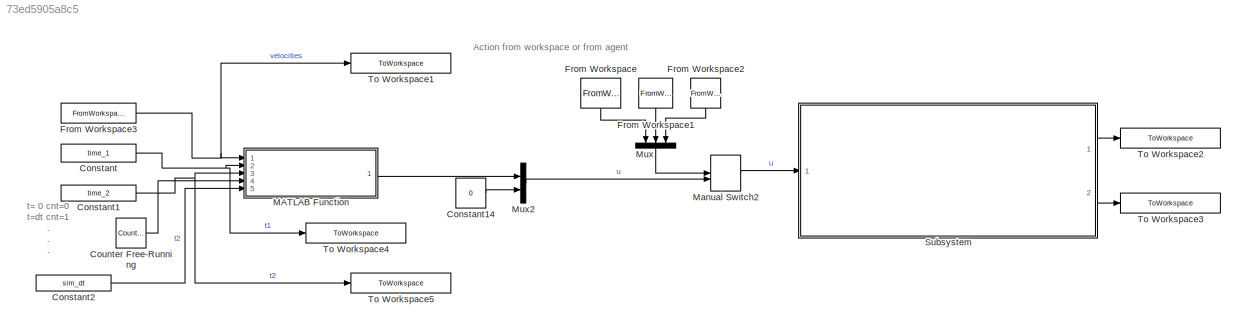
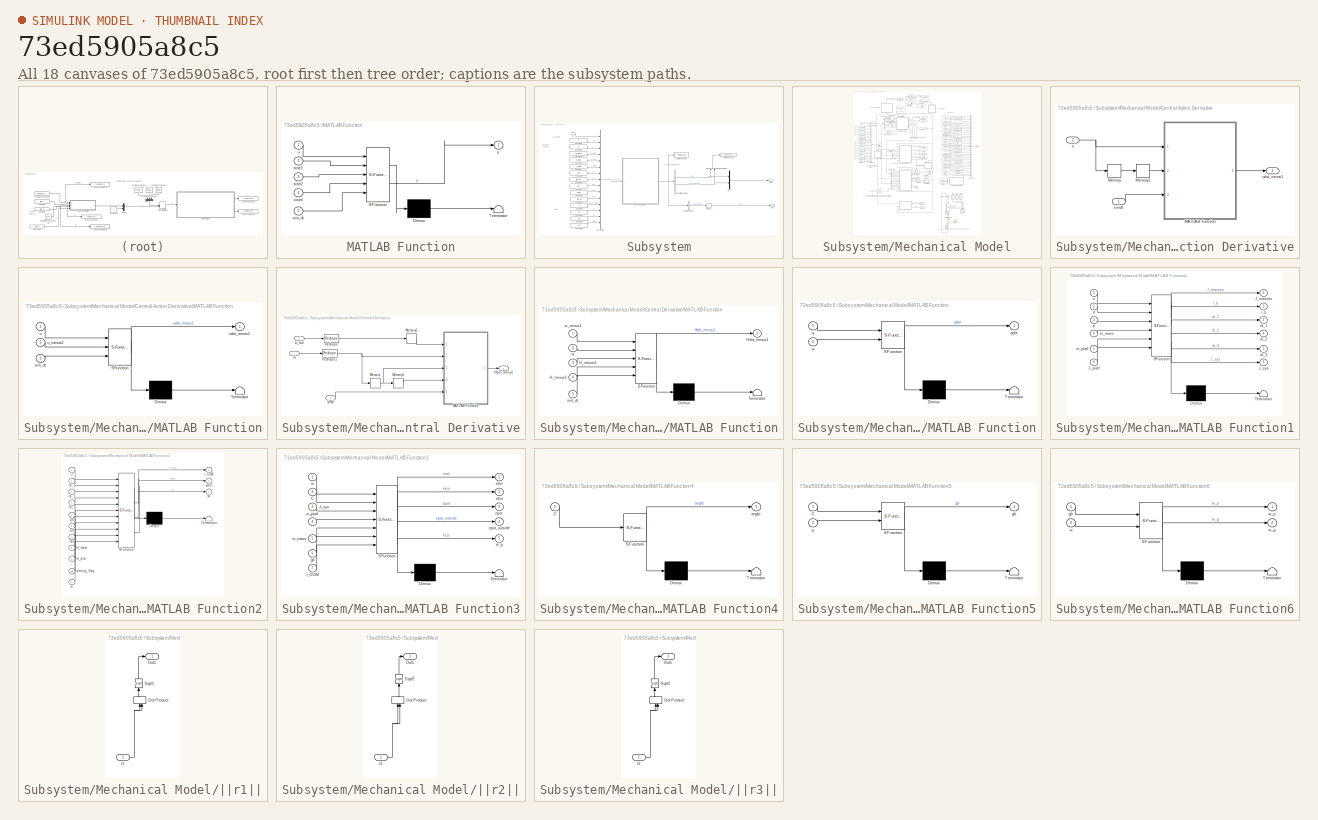
[diagram: thumbnail index - all 18 canvases of the model, root first then tree order]
MODEL slx_73ed5905a8c5
KIND model
CONFIG AbsTol = auto
CONFIG EnableMultiTasking = off
CONFIG FixedStep = 0.001
CONFIG MaxStep = auto
CONFIG MinStep = auto
CONFIG RelTol = 1e-3
CONFIG SampleTimeConstraint = Unconstrained
CONFIG SolverName = FixedStepAuto
CONFIG StartTime = 0.0
CONFIG StopTime = simTime
BLOCK [Constant] Constant
  Value = time_1
BLOCK [Constant] Constant1
  Value = time_2
BLOCK [Constant] Constant14
  Value = 0
BLOCK [Constant] Constant2
  Value = sim_dt
BLOCK [Reference] Counter Free-Running  REF=simulink/Sources/Counter
Free-Running
  Ports = [0, 1]
  SourceBlock = simulink/Sources/Counter\nFree-Running
  SourceProductBaseCode = SL
  SourceType = Counter Free-Running
BLOCK [FromWorkspace] From Workspace
  NameLocation = left
  VariableName = u1
BLOCK [FromWorkspace] From Workspace1
  NameLocation = left
  VariableName = u2
BLOCK [FromWorkspace] From Workspace2
  NameLocation = left
  VariableName = u3
BLOCK [FromWorkspace] From Workspace3
  OutDataTypeStr = double
  VariableName = actions
BLOCK [SubSystem] MATLAB Function
  ErrorFcn = Stateflow.Translate.translate
  PermitHierarchicalResolution = ExplicitOnly
  Ports = [5, 1]
  RequestExecContextInheritance = off
  SFBlockType = MATLAB Function
  TreatAsAtomicUnit = on
BLOCK [Demux] MATLAB Function/ Demux 
  Outputs = 1
  Ports = [1, 1]
BLOCK [S-Function] MATLAB Function/ SFunction 
  EnableBusSupport = on
  FunctionName = sf_sfun
  PortCounts = [5 2]
  Ports = [5, 2]
  SFcnIsStateOwnerBlock = off
  SFunctionDeploymentMode = off
  Tag = Stateflow S-Function 9
BLOCK [Terminator] MATLAB Function/ Terminator 
BLOCK [Inport] MATLAB Function/count
  Port = 4
BLOCK [Inport] MATLAB Function/sim_dt
  Port = 5
BLOCK [Inport] MATLAB Function/time1
  Port = 2
BLOCK [Inport] MATLAB Function/time2
  Port = 3
BLOCK [Inport] MATLAB Function/u
BLOCK [Outport] MATLAB Function/y
BLOCK [ManualSwitch] Manual Switch2
  CurrentSetting = 0
BLOCK [Mux] Mux
  DisplayOption = bar
  Inputs = 3
  NameLocation = left
  Ports = [3, 1]
BLOCK [Mux] Mux2
  DisplayOption = bar
  Inputs = 2
  Ports = [2, 1]
BLOCK [SubSystem] Subsystem
  Ports = [1, 2]
  RequestExecContextInheritance = off
BLOCK [BusCreator] Subsystem/Bus Creator
  DisplayOption = bar
  InheritFromInputs = on
  Inputs = 15
  Ports = [15, 1]
BLOCK [BusCreator] Subsystem/Bus Creator1
  DisplayOption = bar
  InheritFromInputs = on
  Inputs = 2
  NameLocation = right
  Ports = [2, 1]
BLOCK [Constant] Subsystem/Constant
  Value = J_platf
BLOCK [Constant] Subsystem/Constant1
  Value = m_platf
BLOCK [Constant] Subsystem/Constant10
  Value = q0
BLOCK [Constant] Subsystem/Constant11
  Value = umax
BLOCK [Constant] Subsystem/Constant12
  Value = sim_dt
BLOCK [Constant] Subsystem/Constant13
  Value = u0
BLOCK [Constant] Subsystem/Constant2
  Value = m_mass
BLOCK [Constant] Subsystem/Constant3
  Value = tau
BLOCK [Constant] Subsystem/Constant4
  Value = [0; 0; -g]
BLOCK [Constant] Subsystem/Constant5
  Value = 0
BLOCK [Constant] Subsystem/Constant6
  Value = roff
BLOCK [Constant] Subsystem/Constant7
  Value = p
BLOCK [Constant] Subsystem/Constant8
  Value = d
BLOCK [Constant] Subsystem/Constant9
  Value = w0
BLOCK [Inport] Subsystem/In1
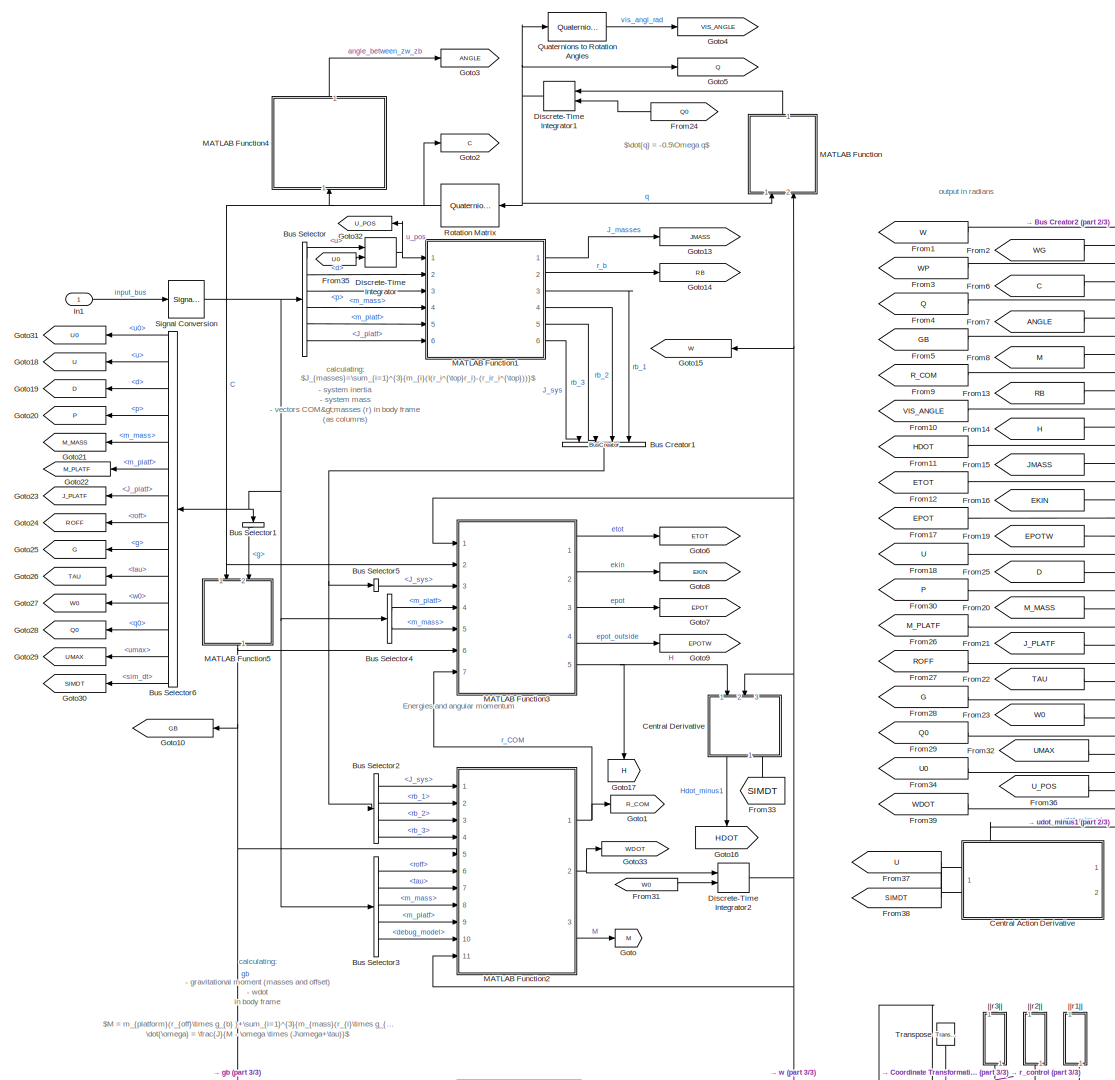
[diagram: Subsystem/Mechanical Model - part 1/3, most of the canvas]
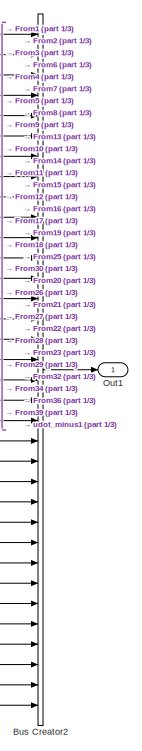
[diagram: Subsystem/Mechanical Model - part 2/3, middle right region]
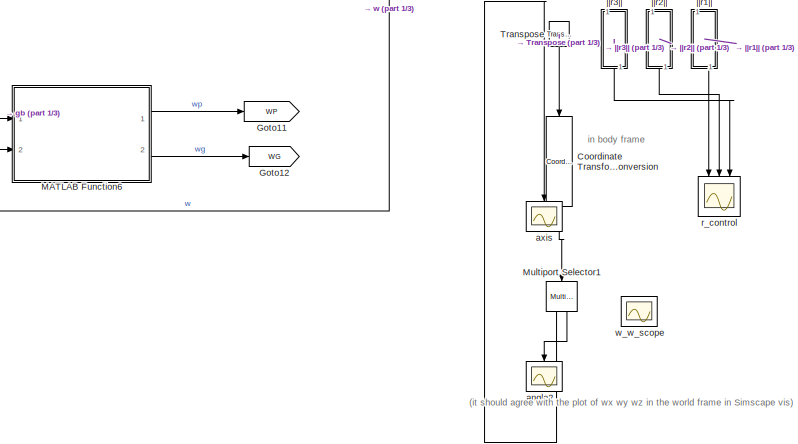
[diagram: Subsystem/Mechanical Model - part 3/3, bottom center region]
BLOCK [SubSystem] Subsystem/Mechanical Model
  NameLocation = top
  Ports = [1, 1]
  RequestExecContextInheritance = off
BLOCK [BusCreator] Subsystem/Mechanical Model/Bus Creator1
  DisplayOption = bar
  InheritFromInputs = on
  Inputs = 4
  NameLocation = left
  Ports = [4, 1]
BLOCK [BusCreator] Subsystem/Mechanical Model/Bus Creator2
  DisplayOption = bar
  InheritFromInputs = on
  Inputs = 34
  Ports = [34, 1]
BLOCK [BusSelector] Subsystem/Mechanical Model/Bus Selector
  OutputSignals = u,d,p,m_mass,m_platf,J_platf
  Ports = [1, 6]
BLOCK [BusSelector] Subsystem/Mechanical Model/Bus Selector1
  NameLocation = left
  OutputSignals = g
  Ports = [1, 1]
BLOCK [BusSelector] Subsystem/Mechanical Model/Bus Selector2
  OutputSignals = J_sys,rb_1,rb_2,rb_3
  Ports = [1, 4]
BLOCK [BusSelector] Subsystem/Mechanical Model/Bus Selector3
  OutputSignals = roff,tau,m_mass,m_platf,debug_model
  Ports = [1, 5]
BLOCK [BusSelector] Subsystem/Mechanical Model/Bus Selector4
  OutputSignals = m_platf,m_mass
  Ports = [1, 2]
BLOCK [BusSelector] Subsystem/Mechanical Model/Bus Selector5
  OutputSignals = J_sys
  Ports = [1, 1]
BLOCK [BusSelector] Subsystem/Mechanical Model/Bus Selector6
  NameLocation = top
  OutputSignals = u0,u,d,p,m_mass,m_platf,J_platf,roff,g,tau,w0,q0,umax,sim_dt
  Ports = [1, 14]
BLOCK [SubSystem] Subsystem/Mechanical Model/Central Action Derivative
  Ports = [2, 1]
  RequestExecContextInheritance = off
BLOCK [SubSystem] Subsystem/Mechanical Model/Central Action Derivative/MATLAB Function
  ErrorFcn = Stateflow.Translate.translate
  PermitHierarchicalResolution = ExplicitOnly
  Ports = [3, 1]
  RequestExecContextInheritance = off
  SFBlockType = MATLAB Function
  TreatAsAtomicUnit = on
BLOCK [Demux] Subsystem/Mechanical Model/Central Action Derivative/MATLAB Function/ Demux 
  Outputs = 1
  Ports = [1, 1]
BLOCK [S-Function] Subsystem/Mechanical Model/Central Action Derivative/MATLAB Function/ SFunction 
  EnableBusSupport = on
  FunctionName = sf_sfun
  PortCounts = [3 2]
  Ports = [3, 2]
  SFcnIsStateOwnerBlock = off
  SFunctionDeploymentMode = off
  Tag = Stateflow S-Function 8
BLOCK [Terminator] Subsystem/Mechanical Model/Central Action Derivative/MATLAB Function/ Terminator 
BLOCK [Inport] Subsystem/Mechanical Model/Central Action Derivative/MATLAB Function/sim_dt
  Port = 3
BLOCK [Inport] Subsystem/Mechanical Model/Central Action Derivative/MATLAB Function/u
BLOCK [Inport] Subsystem/Mechanical Model/Central Action Derivative/MATLAB Function/u_minus2
  Port = 2
BLOCK [Outport] Subsystem/Mechanical Model/Central Action Derivative/MATLAB Function/udot_minus1
BLOCK [Memory] Subsystem/Mechanical Model/Central Action Derivative/Memory
BLOCK [Memory] Subsystem/Mechanical Model/Central Action Derivative/Memory1
BLOCK [Inport] Subsystem/Mechanical Model/Central Action Derivative/simdt
BLOCK [Inport] Subsystem/Mechanical Model/Central Action Derivative/u
  Port = 2
BLOCK [Outport] Subsystem/Mechanical Model/Central Action Derivative/udot_minus1
BLOCK [SubSystem] Subsystem/Mechanical Model/Central Derivative
  NameLocation = left
  PortSchema = {"entries":[{"content":{"sides":[{"content":{"connectorIds":["In1","In2"]},"type":"ConnectorPlacement.EquallySpacedRectSide","uuid":"1383cf58-ed2e-4d76-b2bd-bc812874c5c5"},{"content":{"connectorIds":["Out1","In3"],"side":"RIGHT"},"type":"ConnectorPlacement.EquallySpacedRectSide","uuid":"b1333be6-c310-4c35-a541-4e98fbac6c75"},{"content":{"connectorIds":[],"side":"TOP"},"type":"ConnectorPlacement.Eq...<+252ch>
  Ports = [3, 1]
  RequestExecContextInheritance = off
BLOCK [Inport] Subsystem/Mechanical Model/Central Derivative/H
BLOCK [Outport] Subsystem/Mechanical Model/Central Derivative/Hdot_minus1
BLOCK [SubSystem] Subsystem/Mechanical Model/Central Derivative/MATLAB Function
  ErrorFcn = Stateflow.Translate.translate
  PermitHierarchicalResolution = ExplicitOnly
  Ports = [5, 1]
  RequestExecContextInheritance = off
  SFBlockType = MATLAB Function
  TreatAsAtomicUnit = on
BLOCK [Demux] Subsystem/Mechanical Model/Central Derivative/MATLAB Function/ Demux 
  Outputs = 1
  Ports = [1, 1]
BLOCK [S-Function] Subsystem/Mechanical Model/Central Derivative/MATLAB Function/ SFunction 
  EnableBusSupport = on
  FunctionName = sf_sfun
  PortCounts = [5 2]
  Ports = [5, 2]
  SFcnIsStateOwnerBlock = off
  SFunctionDeploymentMode = off
  Tag = Stateflow S-Function 7
BLOCK [Terminator] Subsystem/Mechanical Model/Central Derivative/MATLAB Function/ Terminator 
BLOCK [Inport] Subsystem/Mechanical Model/Central Derivative/MATLAB Function/H
  Port = 2
BLOCK [Inport] Subsystem/Mechanical Model/Central Derivative/MATLAB Function/H_minus1
  Port = 3
BLOCK [Inport] Subsystem/Mechanical Model/Central Derivative/MATLAB Function/H_minus2
  Port = 4
BLOCK [Outport] Subsystem/Mechanical Model/Central Derivative/MATLAB Function/Hdot_minus1
BLOCK [Inport] Subsystem/Mechanical Model/Central Derivative/MATLAB Function/sim_dt
  Port = 5
BLOCK [Inport] Subsystem/Mechanical Model/Central Derivative/MATLAB Function/w_minus1
BLOCK [Memory] Subsystem/Mechanical Model/Central Derivative/Memory
  InitialCondition = Hb_minus1_mem
BLOCK [Memory] Subsystem/Mechanical Model/Central Derivative/Memory1
  InitialCondition = Hb_minus2_mem
BLOCK [Memory] Subsystem/Mechanical Model/Central Derivative/Memory2
  InitialCondition = w_minus1_mem
BLOCK [Reshape] Subsystem/Mechanical Model/Central Derivative/Reshape
  Ports = [1, 1]
BLOCK [Reshape] Subsystem/Mechanical Model/Central Derivative/Reshape1
  Ports = [1, 1]
BLOCK [Inport] Subsystem/Mechanical Model/Central Derivative/simdt
  Port = 3
BLOCK [Inport] Subsystem/Mechanical Model/Central Derivative/w_rad
  Port = 2
BLOCK [Reference] Subsystem/Mechanical Model/Coordinate Transformation Conversion  REF=robotcorelib/Coordinate Transformation Conversion
  Commented = on
  NameLocation = left
  Ports = [1, 1]
  SourceBlock = robotcorelib/Coordinate Transformation Conversion
  SourceProductBaseCode = NV,RO,RR,UV
  SourceType = robotics.slcore.internal.block.CoordinateTransformationConversion
BLOCK [DiscreteIntegrator] Subsystem/Mechanical Model/Discrete-Time Integrator
  ICPrevOutput = DiscIntNeverNeededParam
  ICPrevScaledInput = DiscIntNeverNeededParam
  InitialConditionSetting = Auto
  InitialConditionSource = external
  Ports = [2, 1]
  SampleTime = -1
BLOCK [DiscreteIntegrator] Subsystem/Mechanical Model/Discrete-Time Integrator1
  ICPrevOutput = DiscIntNeverNeededParam
  ICPrevScaledInput = DiscIntNeverNeededParam
  InitialConditionSetting = Auto
  InitialConditionSource = external
  NameLocation = top
  Ports = [2, 1]
  SampleTime = -1
BLOCK [DiscreteIntegrator] Subsystem/Mechanical Model/Discrete-Time Integrator2
  ICPrevOutput = DiscIntNeverNeededParam
  ICPrevScaledInput = DiscIntNeverNeededParam
  InitialConditionSetting = Auto
  InitialConditionSource = external
  Ports = [2, 1]
  SampleTime = -1
BLOCK [From] Subsystem/Mechanical Model/From1
  GotoTag = W
BLOCK [From] Subsystem/Mechanical Model/From10
  GotoTag = VIS_ANGLE
BLOCK [From] Subsystem/Mechanical Model/From11
  GotoTag = HDOT
BLOCK [From] Subsystem/Mechanical Model/From12
  GotoTag = ETOT
BLOCK [From] Subsystem/Mechanical Model/From13
  GotoTag = RB
BLOCK [From] Subsystem/Mechanical Model/From14
  GotoTag = H
BLOCK [From] Subsystem/Mechanical Model/From15
  GotoTag = JMASS
BLOCK [From] Subsystem/Mechanical Model/From16
  GotoTag = EKIN
BLOCK [From] Subsystem/Mechanical Model/From17
  GotoTag = EPOT
BLOCK [From] Subsystem/Mechanical Model/From18
  GotoTag = U
BLOCK [From] Subsystem/Mechanical Model/From19
  GotoTag = EPOTW
BLOCK [From] Subsystem/Mechanical Model/From2
  GotoTag = WG
BLOCK [From] Subsystem/Mechanical Model/From20
  GotoTag = M_MASS
BLOCK [From] Subsystem/Mechanical Model/From21
  GotoTag = J_PLATF
BLOCK [From] Subsystem/Mechanical Model/From22
  GotoTag = TAU
BLOCK [From] Subsystem/Mechanical Model/From23
  GotoTag = W0
BLOCK [From] Subsystem/Mechanical Model/From24
  GotoTag = Q0
  NameLocation = top
BLOCK [From] Subsystem/Mechanical Model/From25
  GotoTag = D
BLOCK [From] Subsystem/Mechanical Model/From26
  GotoTag = M_PLATF
BLOCK [From] Subsystem/Mechanical Model/From27
  GotoTag = ROFF
BLOCK [From] Subsystem/Mechanical Model/From28
  GotoTag = G
BLOCK [From] Subsystem/Mechanical Model/From29
  GotoTag = Q0
BLOCK [From] Subsystem/Mechanical Model/From3
  GotoTag = WP
BLOCK [From] Subsystem/Mechanical Model/From30
  GotoTag = P
BLOCK [From] Subsystem/Mechanical Model/From31
  GotoTag = W0
BLOCK [From] Subsystem/Mechanical Model/From32
  GotoTag = UMAX
BLOCK [From] Subsystem/Mechanical Model/From33
  GotoTag = SIMDT
  NameLocation = right
BLOCK [From] Subsystem/Mechanical Model/From34
  GotoTag = U0
BLOCK [From] Subsystem/Mechanical Model/From35
  GotoTag = U0
BLOCK [From] Subsystem/Mechanical Model/From36
  GotoTag = U_POS
BLOCK [From] Subsystem/Mechanical Model/From37
  GotoTag = U
BLOCK [From] Subsystem/Mechanical Model/From38
  GotoTag = SIMDT
BLOCK [From] Subsystem/Mechanical Model/From39
  GotoTag = WDOT
BLOCK [From] Subsystem/Mechanical Model/From4
  GotoTag = Q
BLOCK [From] Subsystem/Mechanical Model/From5
  GotoTag = GB
BLOCK [From] Subsystem/Mechanical Model/From6
  GotoTag = C
BLOCK [From] Subsystem/Mechanical Model/From7
  GotoTag = ANGLE
BLOCK [From] Subsystem/Mechanical Model/From8
  GotoTag = M
BLOCK [From] Subsystem/Mechanical Model/From9
  GotoTag = R_COM
BLOCK [Goto] Subsystem/Mechanical Model/Goto
  GotoTag = M
BLOCK [Goto] Subsystem/Mechanical Model/Goto1
  GotoTag = R_COM
BLOCK [Goto] Subsystem/Mechanical Model/Goto10
  GotoTag = GB
  NameLocation = top
BLOCK [Goto] Subsystem/Mechanical Model/Goto11
  GotoTag = WP
BLOCK [Goto] Subsystem/Mechanical Model/Goto12
  GotoTag = WG
BLOCK [Goto] Subsystem/Mechanical Model/Goto13
  GotoTag = JMASS
BLOCK [Goto] Subsystem/Mechanical Model/Goto14
  GotoTag = RB
BLOCK [Goto] Subsystem/Mechanical Model/Goto15
  GotoTag = W
  NameLocation = top
BLOCK [Goto] Subsystem/Mechanical Model/Goto16
  GotoTag = HDOT
  NameLocation = left
BLOCK [Goto] Subsystem/Mechanical Model/Goto17
  GotoTag = H
  NameLocation = left
BLOCK [Goto] Subsystem/Mechanical Model/Goto18
  GotoTag = U
  NameLocation = top
BLOCK [Goto] Subsystem/Mechanical Model/Goto19
  GotoTag = D
  NameLocation = top
BLOCK [Goto] Subsystem/Mechanical Model/Goto2
  GotoTag = C
BLOCK [Goto] Subsystem/Mechanical Model/Goto20
  GotoTag = P
  NameLocation = top
BLOCK [Goto] Subsystem/Mechanical Model/Goto21
  GotoTag = M_MASS
  NameLocation = top
BLOCK [Goto] Subsystem/Mechanical Model/Goto22
  GotoTag = M_PLATF
  NameLocation = top
BLOCK [Goto] Subsystem/Mechanical Model/Goto23
  GotoTag = J_PLATF
  NameLocation = top
BLOCK [Goto] Subsystem/Mechanical Model/Goto24
  GotoTag = ROFF
  NameLocation = top
BLOCK [Goto] Subsystem/Mechanical Model/Goto25
  GotoTag = G
  NameLocation = top
BLOCK [Goto] Subsystem/Mechanical Model/Goto26
  GotoTag = TAU
  NameLocation = top
BLOCK [Goto] Subsystem/Mechanical Model/Goto27
  GotoTag = W0
  NameLocation = top
BLOCK [Goto] Subsystem/Mechanical Model/Goto28
  GotoTag = Q0
  NameLocation = top
BLOCK [Goto] Subsystem/Mechanical Model/Goto29
  GotoTag = UMAX
  NameLocation = top
BLOCK [Goto] Subsystem/Mechanical Model/Goto3
  GotoTag = ANGLE
BLOCK [Goto] Subsystem/Mechanical Model/Goto30
  GotoTag = SIMDT
  NameLocation = top
BLOCK [Goto] Subsystem/Mechanical Model/Goto31
  GotoTag = U0
  NameLocation = top
BLOCK [Goto] Subsystem/Mechanical Model/Goto32
  GotoTag = U_POS
  NameLocation = top
BLOCK [Goto] Subsystem/Mechanical Model/Goto33
  GotoTag = WDOT
BLOCK [Goto] Subsystem/Mechanical Model/Goto4
  GotoTag = VIS_ANGLE
BLOCK [Goto] Subsystem/Mechanical Model/Goto5
  GotoTag = Q
BLOCK [Goto] Subsystem/Mechanical Model/Goto6
  GotoTag = ETOT
BLOCK [Goto] Subsystem/Mechanical Model/Goto7
  GotoTag = EPOT
BLOCK [Goto] Subsystem/Mechanical Model/Goto8
  GotoTag = EKIN
BLOCK [Goto] Subsystem/Mechanical Model/Goto9
  GotoTag = EPOTW
BLOCK [Inport] Subsystem/Mechanical Model/In1
BLOCK [SubSystem] Subsystem/Mechanical Model/MATLAB Function
  ErrorFcn = Stateflow.Translate.translate
  NameLocation = right
  PermitHierarchicalResolution = ExplicitOnly
  Ports = [2, 1]
  RequestExecContextInheritance = off
  SFBlockType = MATLAB Function
  TreatAsAtomicUnit = on
BLOCK [Demux] Subsystem/Mechanical Model/MATLAB Function/ Demux 
  Outputs = 1
  Ports = [1, 1]
BLOCK [S-Function] Subsystem/Mechanical Model/MATLAB Function/ SFunction 
  EnableBusSupport = on
  FunctionName = sf_sfun
  PortCounts = [2 2]
  Ports = [2, 2]
  SFcnIsStateOwnerBlock = off
  SFunctionDeploymentMode = off
  Tag = Stateflow S-Function 2
BLOCK [Terminator] Subsystem/Mechanical Model/MATLAB Function/ Terminator 
BLOCK [Inport] Subsystem/Mechanical Model/MATLAB Function/q
BLOCK [Outport] Subsystem/Mechanical Model/MATLAB Function/qdot
BLOCK [Inport] Subsystem/Mechanical Model/MATLAB Function/w
  Port = 2
BLOCK [SubSystem] Subsystem/Mechanical Model/MATLAB Function1
  ErrorFcn = Stateflow.Translate.translate
  PermitHierarchicalResolution = ExplicitOnly
  Ports = [6, 6]
  RequestExecContextInheritance = off
  SFBlockType = MATLAB Function
  TreatAsAtomicUnit = on
BLOCK [Demux] Subsystem/Mechanical Model/MATLAB Function1/ Demux 
  Outputs = 1
  Ports = [1, 1]
BLOCK [S-Function] Subsystem/Mechanical Model/MATLAB Function1/ SFunction 
  EnableBusSupport = on
  FunctionName = sf_sfun
  PortCounts = [6 7]
  Ports = [6, 7]
  SFcnIsStateOwnerBlock = off
  SFunctionDeploymentMode = off
  Tag = Stateflow S-Function 4
BLOCK [Terminator] Subsystem/Mechanical Model/MATLAB Function1/ Terminator 
BLOCK [Outport] Subsystem/Mechanical Model/MATLAB Function1/J_masses
BLOCK [Inport] Subsystem/Mechanical Model/MATLAB Function1/J_platf
  Port = 6
BLOCK [Outport] Subsystem/Mechanical Model/MATLAB Function1/J_sys
  Port = 6
BLOCK [Inport] Subsystem/Mechanical Model/MATLAB Function1/d
  Port = 2
BLOCK [Inport] Subsystem/Mechanical Model/MATLAB Function1/m_mass
  Port = 4
BLOCK [Inport] Subsystem/Mechanical Model/MATLAB Function1/m_platf
  Port = 5
BLOCK [Inport] Subsystem/Mechanical Model/MATLAB Function1/p
  Port = 3
BLOCK [Outport] Subsystem/Mechanical Model/MATLAB Function1/r_b
  Port = 2
BLOCK [Outport] Subsystem/Mechanical Model/MATLAB Function1/rb_1
  Port = 3
BLOCK [Outport] Subsystem/Mechanical Model/MATLAB Function1/rb_2
  Port = 4
BLOCK [Outport] Subsystem/Mechanical Model/MATLAB Function1/rb_3
  Port = 5
BLOCK [Inport] Subsystem/Mechanical Model/MATLAB Function1/u
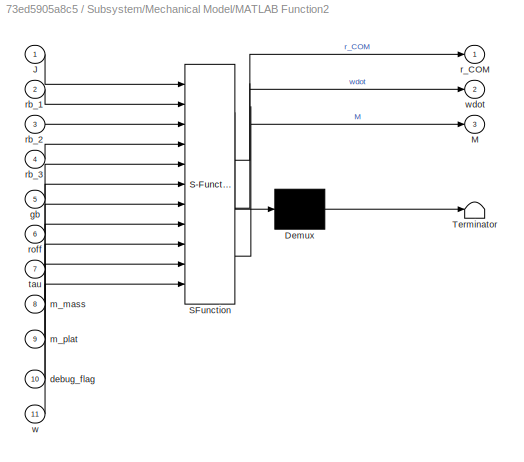
BLOCK [SubSystem] Subsystem/Mechanical Model/MATLAB Function2
  ErrorFcn = Stateflow.Translate.translate
  PermitHierarchicalResolution = ExplicitOnly
  Ports = [11, 3]
  RequestExecContextInheritance = off
  SFBlockType = MATLAB Function
  TreatAsAtomicUnit = on
BLOCK [Demux] Subsystem/Mechanical Model/MATLAB Function2/ Demux 
  Outputs = 1
  Ports = [1, 1]
BLOCK [S-Function] Subsystem/Mechanical Model/MATLAB Function2/ SFunction 
  EnableBusSupport = on
  FunctionName = sf_sfun
  PortCounts = [11 4]
  Ports = [11, 4]
  SFcnIsStateOwnerBlock = off
  SFunctionDeploymentMode = off
  Tag = Stateflow S-Function 3
BLOCK [Terminator] Subsystem/Mechanical Model/MATLAB Function2/ Terminator 
BLOCK [Inport] Subsystem/Mechanical Model/MATLAB Function2/J
BLOCK [Outport] Subsystem/Mechanical Model/MATLAB Function2/M
  Port = 3
BLOCK [Inport] Subsystem/Mechanical Model/MATLAB Function2/debug_flag
  Port = 10
BLOCK [Inport] Subsystem/Mechanical Model/MATLAB Function2/gb
  Port = 5
BLOCK [Inport] Subsystem/Mechanical Model/MATLAB Function2/m_mass
  Port = 8
BLOCK [Inport] Subsystem/Mechanical Model/MATLAB Function2/m_plat
  Port = 9
BLOCK [Outport] Subsystem/Mechanical Model/MATLAB Function2/r_COM
BLOCK [Inport] Subsystem/Mechanical Model/MATLAB Function2/rb_1
  Port = 2
BLOCK [Inport] Subsystem/Mechanical Model/MATLAB Function2/rb_2
  Port = 3
BLOCK [Inport] Subsystem/Mechanical Model/MATLAB Function2/rb_3
  Port = 4
BLOCK [Inport] Subsystem/Mechanical Model/MATLAB Function2/roff
  Port = 6
BLOCK [Inport] Subsystem/Mechanical Model/MATLAB Function2/tau
  Port = 7
BLOCK [Inport] Subsystem/Mechanical Model/MATLAB Function2/w
  Port = 11
BLOCK [Outport] Subsystem/Mechanical Model/MATLAB Function2/wdot
  Port = 2
BLOCK [SubSystem] Subsystem/Mechanical Model/MATLAB Function3
  ErrorFcn = Stateflow.Translate.translate
  PermitHierarchicalResolution = ExplicitOnly
  Ports = [7, 5]
  RequestExecContextInheritance = off
  SFBlockType = MATLAB Function
  TreatAsAtomicUnit = on
BLOCK [Demux] Subsystem/Mechanical Model/MATLAB Function3/ Demux 
  Outputs = 1
  Ports = [1, 1]
BLOCK [S-Function] Subsystem/Mechanical Model/MATLAB Function3/ SFunction 
  EnableBusSupport = on
  FunctionName = sf_sfun
  PortCounts = [7 6]
  Ports = [7, 6]
  SFcnIsStateOwnerBlock = off
  SFunctionDeploymentMode = off
  Tag = Stateflow S-Function 1
BLOCK [Terminator] Subsystem/Mechanical Model/MATLAB Function3/ Terminator 
BLOCK [Inport] Subsystem/Mechanical Model/MATLAB Function3/C
  Port = 2
BLOCK [Outport] Subsystem/Mechanical Model/MATLAB Function3/H_b
  Port = 5
BLOCK [Inport] Subsystem/Mechanical Model/MATLAB Function3/J_sys
  Port = 3
BLOCK [Outport] Subsystem/Mechanical Model/MATLAB Function3/ekin
  Port = 2
BLOCK [Outport] Subsystem/Mechanical Model/MATLAB Function3/epot
  Port = 3
BLOCK [Outport] Subsystem/Mechanical Model/MATLAB Function3/epot_outside
  Port = 4
BLOCK [Outport] Subsystem/Mechanical Model/MATLAB Function3/etot
BLOCK [Inport] Subsystem/Mechanical Model/MATLAB Function3/gb
  Port = 6
BLOCK [Inport] Subsystem/Mechanical Model/MATLAB Function3/m_mass
  Port = 5
BLOCK [Inport] Subsystem/Mechanical Model/MATLAB Function3/m_platf
  Port = 4
BLOCK [Inport] Subsystem/Mechanical Model/MATLAB Function3/r_COM
  Port = 7
BLOCK [Inport] Subsystem/Mechanical Model/MATLAB Function3/w
BLOCK [SubSystem] Subsystem/Mechanical Model/MATLAB Function4
  ErrorFcn = Stateflow.Translate.translate
  NameLocation = left
  PermitHierarchicalResolution = ExplicitOnly
  Ports = [1, 1]
  RequestExecContextInheritance = off
  SFBlockType = MATLAB Function
  TreatAsAtomicUnit = on
BLOCK [Demux] Subsystem/Mechanical Model/MATLAB Function4/ Demux 
  Outputs = 1
  Ports = [1, 1]
BLOCK [S-Function] Subsystem/Mechanical Model/MATLAB Function4/ SFunction 
  EnableBusSupport = on
  FunctionName = sf_sfun
  PortCounts = [1 2]
  Ports = [1, 2]
  SFcnIsStateOwnerBlock = off
  SFunctionDeploymentMode = off
  Tag = Stateflow S-Function 5
BLOCK [Terminator] Subsystem/Mechanical Model/MATLAB Function4/ Terminator 
BLOCK [Inport] Subsystem/Mechanical Model/MATLAB Function4/C
BLOCK [Outport] Subsystem/Mechanical Model/MATLAB Function4/angle
BLOCK [SubSystem] Subsystem/Mechanical Model/MATLAB Function5
  ErrorFcn = Stateflow.Translate.translate
  NameLocation = right
  PermitHierarchicalResolution = ExplicitOnly
  Ports = [2, 1]
  RequestExecContextInheritance = off
  SFBlockType = MATLAB Function
  TreatAsAtomicUnit = on
BLOCK [Demux] Subsystem/Mechanical Model/MATLAB Function5/ Demux 
  Outputs = 1
  Ports = [1, 1]
BLOCK [S-Function] Subsystem/Mechanical Model/MATLAB Function5/ SFunction 
  EnableBusSupport = on
  FunctionName = sf_sfun
  PortCounts = [2 2]
  Ports = [2, 2]
  SFcnIsStateOwnerBlock = off
  SFunctionDeploymentMode = off
  Tag = Stateflow S-Function 12
BLOCK [Terminator] Subsystem/Mechanical Model/MATLAB Function5/ Terminator 
BLOCK [Inport] Subsystem/Mechanical Model/MATLAB Function5/C
BLOCK [Inport] Subsystem/Mechanical Model/MATLAB Function5/g
  Port = 2
BLOCK [Outport] Subsystem/Mechanical Model/MATLAB Function5/gb
BLOCK [SubSystem] Subsystem/Mechanical Model/MATLAB Function6
  ErrorFcn = Stateflow.Translate.translate
  PermitHierarchicalResolution = ExplicitOnly
  Ports = [2, 2]
  RequestExecContextInheritance = off
  SFBlockType = MATLAB Function
  TreatAsAtomicUnit = on
BLOCK [Demux] Subsystem/Mechanical Model/MATLAB Function6/ Demux 
  Outputs = 1
  Ports = [1, 1]
BLOCK [S-Function] Subsystem/Mechanical Model/MATLAB Function6/ SFunction 
  EnableBusSupport = on
  FunctionName = sf_sfun
  PortCounts = [2 3]
  Ports = [2, 3]
  SFcnIsStateOwnerBlock = off
  SFunctionDeploymentMode = off
  Tag = Stateflow S-Function 6
BLOCK [Terminator] Subsystem/Mechanical Model/MATLAB Function6/ Terminator 
BLOCK [Inport] Subsystem/Mechanical Model/MATLAB Function6/gb
BLOCK [Inport] Subsystem/Mechanical Model/MATLAB Function6/w
  Port = 2
BLOCK [Outport] Subsystem/Mechanical Model/MATLAB Function6/w_g
  Port = 2
BLOCK [Outport] Subsystem/Mechanical Model/MATLAB Function6/w_p
BLOCK [Reference] Subsystem/Mechanical Model/Multiport Selector1  REF=dspindex/Multiport
Selector
  Commented = on
  NameLocation = left
  Ports = [1, 2]
  SourceBlock = dspindex/Multiport\nSelector
  SourceProductBaseCode = DS
  SourceType = Multiport Selector
BLOCK [Outport] Subsystem/Mechanical Model/Out1
BLOCK [Reference] Subsystem/Mechanical Model/Quaternions to Rotation Angles  REF=sharedtransform/Quaternions to Rotation Angles
  AttributesFormatString = Rotation Order: %<rotationOrder>
  Ports = [1, 1]
  SourceBlock = sharedtransform/Quaternions to Rotation Angles
  SourceProductBaseCode = AE,PW,DR,MT,UV,VE
  SourceType = Quat2Ang
BLOCK [Reference] Subsystem/Mechanical Model/Rotation Matrix  REF=sharedtransform/Quaternions to 
Direction Cosine Matrix
  NameLocation = top
  Ports = [1, 1]
  SourceBlock = sharedtransform/Quaternions to \nDirection Cosine Matrix
  SourceProductBaseCode = AE,PW,DR,MT,UV,VE
  SourceType = Quaternion2DCM
BLOCK [SignalConversion] Subsystem/Mechanical Model/Signal Conversion
  OverrideOpt = on
BLOCK [Reference] Subsystem/Mechanical Model/Transpose  REF=matrix_library/Transpose
  Commented = on
  NameLocation = left
  Ports = [1, 1]
  SourceBlock = matrix_library/Transpose
  SourceProductBaseCode = SL
  SourceType = Transpose
BLOCK [Scope] Subsystem/Mechanical Model/angle2
  Commented = on
  Floating = off
  NameLocation = right
  NumInputPorts = 1
  Ports = [1]
  ScopeSpecificationString = Simulink.scopes.TimeScopeBlockCfg('CurrentConfiguration', extmgr.ConfigurationSet(extmgr.Configuration('Core','General UI',true),extmgr.Configuration('Core','Source UI',true),extmgr.Configuration('Sources','WiredSimulink',true,'DataLoggingVariableName','ScopeData1'),extmgr.Configuration('Visuals','Time Domain',true,'SerializedDisplays',{struct('MinYLimReal','0.07984','MaxYLimReal','0.32551','YLabe...<+1449ch>
BLOCK [Scope] Subsystem/Mechanical Model/axis
  Commented = on
  Floating = off
  NameLocation = right
  NumInputPorts = 1
  Ports = [1]
  ScopeSpecificationString = Simulink.scopes.TimeScopeBlockCfg('CurrentConfiguration', extmgr.ConfigurationSet(extmgr.Configuration('Core','General UI',true),extmgr.Configuration('Core','Source UI',true),extmgr.Configuration('Sources','WiredSimulink',true,'DataLoggingVariableName','ScopeData2'),extmgr.Configuration('Visuals','Time Domain',true,'SerializedDisplays',{struct('MinYLimReal','-1.24596','MaxYLimReal','1.24955','YLab...<+1503ch>
BLOCK [Scope] Subsystem/Mechanical Model/r_control
  Commented = on
  Floating = off
  NameLocation = top
  NumInputPorts = 3
  Ports = [3]
  ScopeSpecificationString = Simulink.scopes.TimeScopeBlockCfg('CurrentConfiguration', extmgr.ConfigurationSet(extmgr.Configuration('Core','General UI',true),extmgr.Configuration('Core','Source UI',true),extmgr.Configuration('Sources','WiredSimulink',true,'DataLoggingVariableName','ScopeData1'),extmgr.Configuration('Visuals','Time Domain',true,'SerializedDisplays',{struct('MinYLimReal','-0.00875','MaxYLimReal','0.07875','YLab...<+1473ch>
BLOCK [Scope] Subsystem/Mechanical Model/w_w_scope
  Commented = on
  Floating = off
  NameLocation = right
  NumInputPorts = 1
  Ports = [1]
  ScopeSpecificationString = Simulink.scopes.TimeScopeBlockCfg('CurrentConfiguration', extmgr.ConfigurationSet(extmgr.Configuration('Core','General UI',true),extmgr.Configuration('Core','Source UI',true),extmgr.Configuration('Sources','WiredSimulink',true,'DataLoggingVariableName','ScopeData2'),extmgr.Configuration('Visuals','Time Domain',true,'SerializedDisplays',{struct('MinYLimReal','-0.10913','MaxYLimReal','0.10909','YLab...<+1502ch>
BLOCK [SubSystem] Subsystem/Mechanical Model/||r1||
  Commented = on
  NameLocation = left
  Ports = [1, 1]
  RequestExecContextInheritance = off
BLOCK [DotProduct] Subsystem/Mechanical Model/||r1||/Dot Product
  NameLocation = right
  OutDataTypeStr = Inherit: Inherit via internal rule
  RndMeth = Nearest
BLOCK [Outport] Subsystem/Mechanical Model/||r1||/Out1
BLOCK [Sqrt] Subsystem/Mechanical Model/||r1||/Sqrt2
  NameLocation = right
BLOCK [Inport] Subsystem/Mechanical Model/||r1||/r1
BLOCK [SubSystem] Subsystem/Mechanical Model/||r2||
  Commented = on
  NameLocation = left
  Ports = [1, 1]
  RequestExecContextInheritance = off
BLOCK [DotProduct] Subsystem/Mechanical Model/||r2||/Dot Product
  NameLocation = right
  OutDataTypeStr = Inherit: Inherit via internal rule
  RndMeth = Nearest
BLOCK [Outport] Subsystem/Mechanical Model/||r2||/Out1
BLOCK [Sqrt] Subsystem/Mechanical Model/||r2||/Sqrt2
  NameLocation = right
BLOCK [Inport] Subsystem/Mechanical Model/||r2||/r2
BLOCK [SubSystem] Subsystem/Mechanical Model/||r3||
  Commented = on
  NameLocation = left
  Ports = [1, 1]
  RequestExecContextInheritance = off
BLOCK [DotProduct] Subsystem/Mechanical Model/||r3||/Dot Product
  NameLocation = right
  OutDataTypeStr = Inherit: Inherit via internal rule
  RndMeth = Nearest
BLOCK [Outport] Subsystem/Mechanical Model/||r3||/Out1
BLOCK [Sqrt] Subsystem/Mechanical Model/||r3||/Sqrt2
  NameLocation = right
BLOCK [Inport] Subsystem/Mechanical Model/||r3||/r3
BLOCK [Mux] Subsystem/Mux1
  DisplayOption = bar
  Inputs = 2
  NameLocation = right
  Ports = [2, 1]
BLOCK [BusSelector] Subsystem/ObservationSelector
  NameLocation = right
  OutputSignals = w,vis_angl_rad
  Ports = [1, 2]
BLOCK [Outport] Subsystem/Out1
BLOCK [BusSelector] Subsystem/RewardSelector
  OutputSignals = Hdot_minus1
  Ports = [1, 1]
BLOCK [Selector] Subsystem/Selector
  IndexOptions = Index vector (dialog)
  Indices = [3]
  InputPortWidth = 3
  OutputSizes = 1
  Ports = [1, 1]
BLOCK [ToWorkspace] Subsystem/To Workspace1
  MaxDataPoints = inf
  NameLocation = right
  Ports = [1]
  SampleTime = -1
  Save2DSignal = 2-D array (concatenate along first dimension)
  SaveFormat = Timeseries
  VariableName = observations_series
BLOCK [ToWorkspace] Subsystem/To Workspace11
  MaxDataPoints = inf
  NameLocation = right
  Ports = [1]
  SampleTime = -1
  Save2DSignal = 2-D array (concatenate along first dimension)
  SaveFormat = Timeseries
  VariableName = results
BLOCK [Outport] Subsystem/hdot
  Port = 2
BLOCK [ToWorkspace] To Workspace1
  MaxDataPoints = inf
  NameLocation = right
  Ports = [1]
  SampleTime = -1
  VariableName = actions_in
BLOCK [ToWorkspace] To Workspace2
  MaxDataPoints = inf
  NameLocation = right
  Ports = [1]
  SampleTime = -1
  VariableName = observations
BLOCK [ToWorkspace] To Workspace3
  MaxDataPoints = inf
  NameLocation = right
  Ports = [1]
  SampleTime = -1
  VariableName = reward_sig
BLOCK [ToWorkspace] To Workspace4
  MaxDataPoints = inf
  NameLocation = right
  Ports = [1]
  SampleTime = -1
  VariableName = time1
BLOCK [ToWorkspace] To Workspace5
  MaxDataPoints = inf
  NameLocation = right
  Ports = [1]
  SampleTime = -1
  VariableName = time2
ANNOTATION (root): Action from workspace or from agent
ANNOTATION (root): t= 0 cnt=0 t=dt cnt=1 . . .
ANNOTATION Subsystem: Initial
ANNOTATION Subsystem: RL observation vector
ANNOTATION Subsystem: [d1;d2;d3]
ANNOTATION Subsystem: [p1;p2;p3]
ANNOTATION Subsystem: constants
ANNOTATION Subsystem/Mechanical Model: Energies and angular momentum
ANNOTATION Subsystem/Mechanical Model: calculating: - gravitational moment (masses and offset) - wdot in body frame
ANNOTATION Subsystem/Mechanical Model: calculating: - system inertia - system mass - vectors COM>masses (r) in body frame (as columns)
ANNOTATION Subsystem/Mechanical Model: in body frame
ANNOTATION Subsystem/Mechanical Model: output in radians
ANNOTATION Subsystem/Mechanical Model: (it should agree with the plot of wx wy wz in the world frame in Simscape vis)
ANNOTATION Subsystem/Mechanical Model: $M = m_{platform}(r_{off}\times g_{b} )+\sum_{i=1}^{3}{m_{mass}(r_{i}\times g_{b} ) }\\ \dot{\omega} = \frac{J}{M - \omega \times (J\omega+\tau)}$
ANNOTATION Subsystem/Mechanical Model: $J_{masses}=\sum_{i=1}^{3}{m_{i}(I(r_i^{\top}r_i)-(r_ir_i^{\top}))}$
ANNOTATION Subsystem/Mechanical Model: $\dot{q} = -0.5\Omega q$
LINE Constant14:1 -> Mux2:2
NET Constant1:1 -> MATLAB Function:3, To Workspace5:1
LINE Constant2:1 -> MATLAB Function:5
NET Constant:1 -> MATLAB Function:2, To Workspace4:1
LINE Counter Free-Running:1 -> MATLAB Function:4
LINE From Workspace1:1 -> Mux:2
LINE From Workspace2:1 -> Mux:3
NET From Workspace3:1 -> MATLAB Function:1, To Workspace1:1
LINE From Workspace:1 -> Mux:1
LINE MATLAB Function:1 -> Mux2:1
LINE Manual Switch2:1 -> Subsystem:1
LINE Mux2:1 -> Manual Switch2:2
LINE Mux:1 -> Manual Switch2:1
LINE Subsystem/Bus Creator1:1 -> Subsystem/To Workspace1:1
LINE Subsystem/Bus Creator:1 -> Subsystem/Mechanical Model:1
LINE Subsystem/Constant10:1 -> Subsystem/Bus Creator:15
LINE Subsystem/Constant11:1 -> Subsystem/Bus Creator:10
LINE Subsystem/Constant12:1 -> Subsystem/Bus Creator:11
LINE Subsystem/Constant13:1 -> Subsystem/Bus Creator:13
LINE Subsystem/Constant1:1 -> Subsystem/Bus Creator:5
LINE Subsystem/Constant2:1 -> Subsystem/Bus Creator:4
LINE Subsystem/Constant3:1 -> Subsystem/Bus Creator:9
LINE Subsystem/Constant4:1 -> Subsystem/Bus Creator:8
LINE Subsystem/Constant5:1 -> Subsystem/Bus Creator:12
LINE Subsystem/Constant6:1 -> Subsystem/Bus Creator:7
LINE Subsystem/Constant7:1 -> Subsystem/Bus Creator:3
LINE Subsystem/Constant8:1 -> Subsystem/Bus Creator:2
LINE Subsystem/Constant9:1 -> Subsystem/Bus Creator:14
LINE Subsystem/Constant:1 -> Subsystem/Bus Creator:6
LINE Subsystem/In1:1 -> Subsystem/Bus Creator:1
NET Subsystem/Mechanical Model/Bus Creator1:1 -> Subsystem/Mechanical Model/Bus Selector2:1, Subsystem/Mechanical Model/Bus Selector5:1
LINE Subsystem/Mechanical Model/Bus Creator2:1 -> Subsystem/Mechanical Model/Out1:1
LINE Subsystem/Mechanical Model/Bus Selector1:1 -> Subsystem/Mechanical Model/MATLAB Function5:2
LINE Subsystem/Mechanical Model/Bus Selector2:1 -> Subsystem/Mechanical Model/MATLAB Function2:1
LINE Subsystem/Mechanical Model/Bus Selector2:2 -> Subsystem/Mechanical Model/MATLAB Function2:2
LINE Subsystem/Mechanical Model/Bus Selector2:3 -> Subsystem/Mechanical Model/MATLAB Function2:3
LINE Subsystem/Mechanical Model/Bus Selector2:4 -> Subsystem/Mechanical Model/MATLAB Function2:4
LINE Subsystem/Mechanical Model/Bus Selector3:1 -> Subsystem/Mechanical Model/MATLAB Function2:6
LINE Subsystem/Mechanical Model/Bus Selector3:2 -> Subsystem/Mechanical Model/MATLAB Function2:7
LINE Subsystem/Mechanical Model/Bus Selector3:3 -> Subsystem/Mechanical Model/MATLAB Function2:8
LINE Subsystem/Mechanical Model/Bus Selector3:4 -> Subsystem/Mechanical Model/MATLAB Function2:9
LINE Subsystem/Mechanical Model/Bus Selector3:5 -> Subsystem/Mechanical Model/MATLAB Function2:10
LINE Subsystem/Mechanical Model/Bus Selector4:1 -> Subsystem/Mechanical Model/MATLAB Function3:4
LINE Subsystem/Mechanical Model/Bus Selector4:2 -> Subsystem/Mechanical Model/MATLAB Function3:5
LINE Subsystem/Mechanical Model/Bus Selector5:1 -> Subsystem/Mechanical Model/MATLAB Function3:3
LINE Subsystem/Mechanical Model/Bus Selector6:1 -> Subsystem/Mechanical Model/Goto31:1
LINE Subsystem/Mechanical Model/Bus Selector6:10 -> Subsystem/Mechanical Model/Goto26:1
LINE Subsystem/Mechanical Model/Bus Selector6:11 -> Subsystem/Mechanical Model/Goto27:1
LINE Subsystem/Mechanical Model/Bus Selector6:12 -> Subsystem/Mechanical Model/Goto28:1
LINE Subsystem/Mechanical Model/Bus Selector6:13 -> Subsystem/Mechanical Model/Goto29:1
LINE Subsystem/Mechanical Model/Bus Selector6:14 -> Subsystem/Mechanical Model/Goto30:1
LINE Subsystem/Mechanical Model/Bus Selector6:2 -> Subsystem/Mechanical Model/Goto18:1
LINE Subsystem/Mechanical Model/Bus Selector6:3 -> Subsystem/Mechanical Model/Goto19:1
LINE Subsystem/Mechanical Model/Bus Selector6:4 -> Subsystem/Mechanical Model/Goto20:1
LINE Subsystem/Mechanical Model/Bus Selector6:5 -> Subsystem/Mechanical Model/Goto21:1
LINE Subsystem/Mechanical Model/Bus Selector6:6 -> Subsystem/Mechanical Model/Goto22:1
LINE Subsystem/Mechanical Model/Bus Selector6:7 -> Subsystem/Mechanical Model/Goto23:1
LINE Subsystem/Mechanical Model/Bus Selector6:8 -> Subsystem/Mechanical Model/Goto24:1
LINE Subsystem/Mechanical Model/Bus Selector6:9 -> Subsystem/Mechanical Model/Goto25:1
LINE Subsystem/Mechanical Model/Bus Selector:1 -> Subsystem/Mechanical Model/Discrete-Time Integrator:1
LINE Subsystem/Mechanical Model/Bus Selector:2 -> Subsystem/Mechanical Model/MATLAB Function1:2
LINE Subsystem/Mechanical Model/Bus Selector:3 -> Subsystem/Mechanical Model/MATLAB Function1:3
LINE Subsystem/Mechanical Model/Bus Selector:4 -> Subsystem/Mechanical Model/MATLAB Function1:4
LINE Subsystem/Mechanical Model/Bus Selector:5 -> Subsystem/Mechanical Model/MATLAB Function1:5
LINE Subsystem/Mechanical Model/Bus Selector:6 -> Subsystem/Mechanical Model/MATLAB Function1:6
LINE Subsystem/Mechanical Model/Central Action Derivative/MATLAB Function:1 -> Subsystem/Mechanical Model/Central Action Derivative/udot_minus1:1
LINE Subsystem/Mechanical Model/Central Action Derivative/Memory1:1 -> Subsystem/Mechanical Model/Central Action Derivative/MATLAB Function:2
LINE Subsystem/Mechanical Model/Central Action Derivative/Memory:1 -> Subsystem/Mechanical Model/Central Action Derivative/Memory1:1
LINE Subsystem/Mechanical Model/Central Action Derivative/simdt:1 -> Subsystem/Mechanical Model/Central Action Derivative/MATLAB Function:3
NET Subsystem/Mechanical Model/Central Action Derivative/u:1 -> Subsystem/Mechanical Model/Central Action Derivative/MATLAB Function:1, Subsystem/Mechanical Model/Central Action Derivative/Memory:1
LINE Subsystem/Mechanical Model/Central Action Derivative:1 -> Subsystem/Mechanical Model/Bus Creator2:34
LINE Subsystem/Mechanical Model/Central Derivative/H:1 -> Subsystem/Mechanical Model/Central Derivative/Reshape1:1
LINE Subsystem/Mechanical Model/Central Derivative/MATLAB Function:1 -> Subsystem/Mechanical Model/Central Derivative/Hdot_minus1:1
LINE Subsystem/Mechanical Model/Central Derivative/Memory1:1 -> Subsystem/Mechanical Model/Central Derivative/MATLAB Function:4
LINE Subsystem/Mechanical Model/Central Derivative/Memory2:1 -> Subsystem/Mechanical Model/Central Derivative/MATLAB Function:1
NET Subsystem/Mechanical Model/Central Derivative/Memory:1 -> Subsystem/Mechanical Model/Central Derivative/MATLAB Function:3, Subsystem/Mechanical Model/Central Derivative/Memory1:1
NET Subsystem/Mechanical Model/Central Derivative/Reshape1:1 -> Subsystem/Mechanical Model/Central Derivative/MATLAB Function:2, Subsystem/Mechanical Model/Central Derivative/Memory:1
LINE Subsystem/Mechanical Model/Central Derivative/Reshape:1 -> Subsystem/Mechanical Model/Central Derivative/Memory2:1
LINE Subsystem/Mechanical Model/Central Derivative/simdt:1 -> Subsystem/Mechanical Model/Central Derivative/MATLAB Function:5
LINE Subsystem/Mechanical Model/Central Derivative/w_rad:1 -> Subsystem/Mechanical Model/Central Derivative/Reshape:1
LINE Subsystem/Mechanical Model/Central Derivative:1 -> Subsystem/Mechanical Model/Goto16:1
LINE Subsystem/Mechanical Model/Coordinate Transformation Conversion:1 -> Subsystem/Mechanical Model/Multiport Selector1:1
NET Subsystem/Mechanical Model/Discrete-Time Integrator1:1 -> Subsystem/Mechanical Model/Goto5:1, Subsystem/Mechanical Model/MATLAB Function:1, Subsystem/Mechanical Model/Quaternions to Rotation Angles:1, Subsystem/Mechanical Model/Rotation Matrix:1
NET Subsystem/Mechanical Model/Discrete-Time Integrator2:1 -> Subsystem/Mechanical Model/Central Derivative:2, Subsystem/Mechanical Model/Goto15:1, Subsystem/Mechanical Model/MATLAB Function2:11, Subsystem/Mechanical Model/MATLAB Function3:1, Subsystem/Mechanical Model/MATLAB Function6:2, Subsystem/Mechanical Model/MATLAB Function:2
NET Subsystem/Mechanical Model/Discrete-Time Integrator:1 -> Subsystem/Mechanical Model/Goto32:1, Subsystem/Mechanical Model/MATLAB Function1:1
LINE Subsystem/Mechanical Model/From10:1 -> Subsystem/Mechanical Model/Bus Creator2:11
LINE Subsystem/Mechanical Model/From11:1 -> Subsystem/Mechanical Model/Bus Creator2:13
LINE Subsystem/Mechanical Model/From12:1 -> Subsystem/Mechanical Model/Bus Creator2:15
LINE Subsystem/Mechanical Model/From13:1 -> Subsystem/Mechanical Model/Bus Creator2:10
LINE Subsystem/Mechanical Model/From14:1 -> Subsystem/Mechanical Model/Bus Creator2:12
LINE Subsystem/Mechanical Model/From15:1 -> Subsystem/Mechanical Model/Bus Creator2:14
LINE Subsystem/Mechanical Model/From16:1 -> Subsystem/Mechanical Model/Bus Creator2:16
LINE Subsystem/Mechanical Model/From17:1 -> Subsystem/Mechanical Model/Bus Creator2:17
LINE Subsystem/Mechanical Model/From18:1 -> Subsystem/Mechanical Model/Bus Creator2:19
LINE Subsystem/Mechanical Model/From19:1 -> Subsystem/Mechanical Model/Bus Creator2:18
LINE Subsystem/Mechanical Model/From1:1 -> Subsystem/Mechanical Model/Bus Creator2:1
LINE Subsystem/Mechanical Model/From20:1 -> Subsystem/Mechanical Model/Bus Creator2:22
LINE Subsystem/Mechanical Model/From21:1 -> Subsystem/Mechanical Model/Bus Creator2:24
LINE Subsystem/Mechanical Model/From22:1 -> Subsystem/Mechanical Model/Bus Creator2:26
LINE Subsystem/Mechanical Model/From23:1 -> Subsystem/Mechanical Model/Bus Creator2:28
LINE Subsystem/Mechanical Model/From24:1 -> Subsystem/Mechanical Model/Discrete-Time Integrator1:2
LINE Subsystem/Mechanical Model/From25:1 -> Subsystem/Mechanical Model/Bus Creator2:20
LINE Subsystem/Mechanical Model/From26:1 -> Subsystem/Mechanical Model/Bus Creator2:23
LINE Subsystem/Mechanical Model/From27:1 -> Subsystem/Mechanical Model/Bus Creator2:25
LINE Subsystem/Mechanical Model/From28:1 -> Subsystem/Mechanical Model/Bus Creator2:27
LINE Subsystem/Mechanical Model/From29:1 -> Subsystem/Mechanical Model/Bus Creator2:29
LINE Subsystem/Mechanical Model/From2:1 -> Subsystem/Mechanical Model/Bus Creator2:2
LINE Subsystem/Mechanical Model/From30:1 -> Subsystem/Mechanical Model/Bus Creator2:21
LINE Subsystem/Mechanical Model/From31:1 -> Subsystem/Mechanical Model/Discrete-Time Integrator2:2
LINE Subsystem/Mechanical Model/From32:1 -> Subsystem/Mechanical Model/Bus Creator2:30
LINE Subsystem/Mechanical Model/From33:1 -> Subsystem/Mechanical Model/Central Derivative:3
LINE Subsystem/Mechanical Model/From34:1 -> Subsystem/Mechanical Model/Bus Creator2:31
LINE Subsystem/Mechanical Model/From35:1 -> Subsystem/Mechanical Model/Discrete-Time Integrator:2
LINE Subsystem/Mechanical Model/From36:1 -> Subsystem/Mechanical Model/Bus Creator2:32
LINE Subsystem/Mechanical Model/From37:1 -> Subsystem/Mechanical Model/Central Action Derivative:2
LINE Subsystem/Mechanical Model/From38:1 -> Subsystem/Mechanical Model/Central Action Derivative:1
LINE Subsystem/Mechanical Model/From39:1 -> Subsystem/Mechanical Model/Bus Creator2:33
LINE Subsystem/Mechanical Model/From3:1 -> Subsystem/Mechanical Model/Bus Creator2:3
LINE Subsystem/Mechanical Model/From4:1 -> Subsystem/Mechanical Model/Bus Creator2:5
LINE Subsystem/Mechanical Model/From5:1 -> Subsystem/Mechanical Model/Bus Creator2:7
LINE Subsystem/Mechanical Model/From6:1 -> Subsystem/Mechanical Model/Bus Creator2:4
LINE Subsystem/Mechanical Model/From7:1 -> Subsystem/Mechanical Model/Bus Creator2:6
LINE Subsystem/Mechanical Model/From8:1 -> Subsystem/Mechanical Model/Bus Creator2:8
LINE Subsystem/Mechanical Model/From9:1 -> Subsystem/Mechanical Model/Bus Creator2:9
LINE Subsystem/Mechanical Model/In1:1 -> Subsystem/Mechanical Model/Signal Conversion:1
LINE Subsystem/Mechanical Model/MATLAB Function1:1 -> Subsystem/Mechanical Model/Goto13:1
LINE Subsystem/Mechanical Model/MATLAB Function1:2 -> Subsystem/Mechanical Model/Goto14:1
LINE Subsystem/Mechanical Model/MATLAB Function1:3 -> Subsystem/Mechanical Model/Bus Creator1:4
LINE Subsystem/Mechanical Model/MATLAB Function1:4 -> Subsystem/Mechanical Model/Bus Creator1:3
LINE Subsystem/Mechanical Model/MATLAB Function1:5 -> Subsystem/Mechanical Model/Bus Creator1:2
LINE Subsystem/Mechanical Model/MATLAB Function1:6 -> Subsystem/Mechanical Model/Bus Creator1:1
NET Subsystem/Mechanical Model/MATLAB Function2:1 -> Subsystem/Mechanical Model/Goto1:1, Subsystem/Mechanical Model/MATLAB Function3:7
NET Subsystem/Mechanical Model/MATLAB Function2:2 -> Subsystem/Mechanical Model/Discrete-Time Integrator2:1, Subsystem/Mechanical Model/Goto33:1
LINE Subsystem/Mechanical Model/MATLAB Function2:3 -> Subsystem/Mechanical Model/Goto:1
LINE Subsystem/Mechanical Model/MATLAB Function3:1 -> Subsystem/Mechanical Model/Goto6:1
LINE Subsystem/Mechanical Model/MATLAB Function3:2 -> Subsystem/Mechanical Model/Goto8:1
LINE Subsystem/Mechanical Model/MATLAB Function3:3 -> Subsystem/Mechanical Model/Goto7:1
LINE Subsystem/Mechanical Model/MATLAB Function3:4 -> Subsystem/Mechanical Model/Goto9:1
NET Subsystem/Mechanical Model/MATLAB Function3:5 -> Subsystem/Mechanical Model/Central Derivative:1, Subsystem/Mechanical Model/Goto17:1
LINE Subsystem/Mechanical Model/MATLAB Function4:1 -> Subsystem/Mechanical Model/Goto3:1
NET Subsystem/Mechanical Model/MATLAB Function5:1 -> Subsystem/Mechanical Model/Goto10:1, Subsystem/Mechanical Model/MATLAB Function2:5, Subsystem/Mechanical Model/MATLAB Function3:6, Subsystem/Mechanical Model/MATLAB Function6:1
LINE Subsystem/Mechanical Model/MATLAB Function6:1 -> Subsystem/Mechanical Model/Goto11:1
LINE Subsystem/Mechanical Model/MATLAB Function6:2 -> Subsystem/Mechanical Model/Goto12:1
LINE Subsystem/Mechanical Model/MATLAB Function:1 -> Subsystem/Mechanical Model/Discrete-Time Integrator1:1
LINE Subsystem/Mechanical Model/Multiport Selector1:1 -> Subsystem/Mechanical Model/axis:1
LINE Subsystem/Mechanical Model/Multiport Selector1:2 -> Subsystem/Mechanical Model/angle2:1
LINE Subsystem/Mechanical Model/Quaternions to Rotation Angles:1 -> Subsystem/Mechanical Model/Goto4:1
NET Subsystem/Mechanical Model/Rotation Matrix:1 -> Subsystem/Mechanical Model/Goto2:1, Subsystem/Mechanical Model/MATLAB Function3:2, Subsystem/Mechanical Model/MATLAB Function4:1, Subsystem/Mechanical Model/MATLAB Function5:1
NET Subsystem/Mechanical Model/Signal Conversion:1 -> Subsystem/Mechanical Model/Bus Selector1:1, Subsystem/Mechanical Model/Bus Selector3:1, Subsystem/Mechanical Model/Bus Selector4:1, Subsystem/Mechanical Model/Bus Selector6:1, Subsystem/Mechanical Model/Bus Selector:1
LINE Subsystem/Mechanical Model/Transpose:1 -> Subsystem/Mechanical Model/Coordinate Transformation Conversion:1
LINE Subsystem/Mechanical Model/||r1||/Dot Product:1 -> Subsystem/Mechanical Model/||r1||/Sqrt2:1
LINE Subsystem/Mechanical Model/||r1||/Sqrt2:1 -> Subsystem/Mechanical Model/||r1||/Out1:1
NET Subsystem/Mechanical Model/||r1||/r1:1 -> Subsystem/Mechanical Model/||r1||/Dot Product:1, Subsystem/Mechanical Model/||r1||/Dot Product:2
LINE Subsystem/Mechanical Model/||r1||:1 -> Subsystem/Mechanical Model/r_control:1
LINE Subsystem/Mechanical Model/||r2||/Dot Product:1 -> Subsystem/Mechanical Model/||r2||/Sqrt2:1
LINE Subsystem/Mechanical Model/||r2||/Sqrt2:1 -> Subsystem/Mechanical Model/||r2||/Out1:1
NET Subsystem/Mechanical Model/||r2||/r2:1 -> Subsystem/Mechanical Model/||r2||/Dot Product:1, Subsystem/Mechanical Model/||r2||/Dot Product:2
LINE Subsystem/Mechanical Model/||r2||:1 -> Subsystem/Mechanical Model/r_control:2
LINE Subsystem/Mechanical Model/||r3||/Dot Product:1 -> Subsystem/Mechanical Model/||r3||/Sqrt2:1
LINE Subsystem/Mechanical Model/||r3||/Sqrt2:1 -> Subsystem/Mechanical Model/||r3||/Out1:1
NET Subsystem/Mechanical Model/||r3||/r3:1 -> Subsystem/Mechanical Model/||r3||/Dot Product:1, Subsystem/Mechanical Model/||r3||/Dot Product:2
LINE Subsystem/Mechanical Model/||r3||:1 -> Subsystem/Mechanical Model/r_control:3
NET Subsystem/Mechanical Model:1 -> Subsystem/ObservationSelector:1, Subsystem/RewardSelector:1, Subsystem/To Workspace11:1
LINE Subsystem/Mux1:1 -> Subsystem/Out1:1
NET Subsystem/ObservationSelector:1 -> Subsystem/Bus Creator1:1, Subsystem/Mux1:1
NET Subsystem/ObservationSelector:2 -> Subsystem/Bus Creator1:2, Subsystem/Mux1:2
LINE Subsystem/RewardSelector:1 -> Subsystem/Selector:1
LINE Subsystem/Selector:1 -> Subsystem/hdot:1
LINE Subsystem:1 -> To Workspace2:1
LINE Subsystem:2 -> To Workspace3:1
note: NET lines group one-source signal fan-out (src -> all destinations, sorted); 1:1 wires keep LINE
CHART Subsystem/Mechanical Model/Central Derivative/MATLAB Function states=1 transitions=1
  STATE_LABEL 'eML_blk_kernel()'
  STATE_LABEL 'SCRIPT:\nfunction Hdot_minus1 = fcn(w_minus1,H,H_minus1,H_minus2, sim_dt)\n   H_in_body_dot_minus1 = (H - H_minus2)/2/sim_dt;\n   Hdot_minus1 = H_in_body_dot_minus1 + cross(w_minus1,H_minus1);'
CHART Subsystem/Mechanical Model/Central Action Derivative/MATLAB Function states=1 transitions=1
  STATE_LABEL 'eML_blk_kernel()'
  STATE_LABEL 'SCRIPT:\nfunction udot_minus1 = fcn(u,u_minus2, sim_dt)\n   udot_minus1 = (u - u_minus2)/2/sim_dt;\n  '
CHART MATLAB Function states=1 transitions=1
  STATE_LABEL 'eML_blk_kernel()'
  STATE_LABEL 'SCRIPT:\nfunction y = fcn(u,time1, time2, count, sim_dt)\n    action1 = u(1); action2 = u(2);\n    y = reshape(zeros(2,1),[],1);\n\n    if count ~= 0 % beacause of 0 division\n        if double(count)*sim_dt<=time1, y(1) = action1;\n        else, y(1) = 0;end\n        if double(count)*sim_dt<=time2, y(2) = action2;\n        else, y(2) = 0;end\n    else\n        % provided that time variable telling of the du...<+354ch>'
CHART Subsystem/Mechanical Model/MATLAB Function5 states=1 transitions=1
  STATE_LABEL 'eML_blk_kernel()'
  STATE_LABEL 'SCRIPT:\nfunction gb = gbodyframe(C,g)\ngb = C*g;\n'
CHART Subsystem/Mechanical Model/MATLAB Function3 states=1 transitions=1
  STATE_LABEL 'eML_blk_kernel()'
  STATE_LABEL "SCRIPT:\nfunction [etot,ekin,epot,epot_outside, H_b] = fcn(w,C,J_sys, m_platf,m_mass,gb,r_COM)\n% J_sys = concat_in(:,1:3);\n% rb1 = concat_in(:,6);\n% rb2 = concat_in(:,5);\n% rb3 = concat_in(:,4);\n\n% disp(r_COM)\n\nekin = 0.5*(w)'*J_sys*(w);\n\nepot = (3*m_mass + m_platf) * gb(3) * vecnorm(r_COM);\n%epot = m_platf*gb(3)*vecnorm(r_COM);\n\nr_COM_w = C'*r_COM;\nepot_outside = (3*m_mass + m_platf) * vecnorm(gb)...<+256ch>"
CHART Subsystem/Mechanical Model/MATLAB Function states=1 transitions=1
  STATE_LABEL 'eML_blk_kernel()'
  STATE_LABEL 'SCRIPT:\nfunction qdot = derq(q,w)\n\nw_x = w(1); w_y = w(2); w_z = w(3);\n\n% omega = [ 0     w_z   -w_y    w_x;... \n%           -w_z   0       w_x    w_y;... \n%           w_y   -w_x    0       w_z;... \n%           -w_x   -w_y    -w_z     0];\n\nomega = [ 0      w_x   w_y    w_z;... \n          -w_x   0    -w_z    w_y;... \n          -w_y   w_z    0    -w_x;... \n          -w_z  -w_y   w_x     0];\n\nqdot = ...<+14ch>'
CHART Subsystem/Mechanical Model/MATLAB Function2 states=1 transitions=1
  STATE_LABEL 'eML_blk_kernel()'
  STATE_LABEL 'SCRIPT:\nfunction [r_COM, wdot, M] = fcn(J, rb_1, rb_2, rb_3, gb, roff, tau, m_mass, m_plat, debug_flag,w)\n\n% concatenated along columns\n% J = concat_in(:,1:3);\n% rb_1 = concat_in(:,6);\n% rb_2 = concat_in(:,5);\n% rb_3 = concat_in(:,4);\nif debug_flag\n    disp("Inside gravitational torque and wdot calculation function:")\n    disp("J"),disp(J)\n    disp("rb1"),disp(rb_1)\n    disp("rb2"),disp(rb_2)\n    ...<+420ch>'
CHART Subsystem/Mechanical Model/MATLAB Function1 states=1 transitions=1
  STATE_LABEL 'eML_blk_kernel()'
  STATE_LABEL "SCRIPT:\nfunction [J_masses, r_b, rb_1, rb_2, rb_3,  J_sys] = fcn(u, d, p, m_mass, m_platf, J_platf)\n% [r1x r1y r1z; r2x r2y r2z; r3x r3y r3z]\n% [p1x p1y p1z; p2x p2y p2z; p3x p3y p3z]\n% [\td1x d1y d1z; \n% \td2x d2y d2z; \n% \td3x d3y d3z]\n% [u1; u2; u3] !!!!==== jestem przekonany, że to kolumna\n% r = p + u/||d||*d\n% r is a sum of the p vector and a vector of length u that is along\n% d vector\n\n% d' = \t...<+780ch>"
CHART Subsystem/Mechanical Model/MATLAB Function4 states=1 transitions=1
  STATE_LABEL 'eML_blk_kernel()'
  STATE_LABEL "SCRIPT:\nfunction angle    = calculate_constraint(C)\n%     rw1 = Q'*r1;\n%     rw2 = Q'*r2;\n%     rw3 = Q'*r3;\n%     w_w = Q'*w;\n    % k_prim - coordinates of body frame versor in the inertial frame\n    k_prim = C' * [0; 0; 1];\n    % angle = acos( round( dot( k_prim, [0; 0; 1]) * 1e13) / 1e13); \n    angle = acos ( round( k_prim(3) * 1e13 ) / 1e13);\n    % beacuse [0; 0; 1] => k_prim_x*0 and k_prim_y*...<+133ch>"
CHART Subsystem/Mechanical Model/MATLAB Function6 states=1 transitions=1
  STATE_LABEL 'eML_blk_kernel()'
  STATE_LABEL "SCRIPT:\nfunction [w_p, w_g] = projection_operator(gb,w)\noperator =  eye - (gb * gb')/((vecnorm(gb))^2);\nw_p = (operator * w);\nw_g = (w - w_p);"
CHART  states=0 transitions=0
CHART  states=0 transitions=0
CHART  states=0 transitions=0
CHART  states=0 transitions=0
CHART  states=0 transitions=0
CHART  states=0 transitions=0
CHART  states=0 transitions=0
CHART  states=0 transitions=0
CHART  states=0 transitions=0
CHART  states=0 transitions=0
